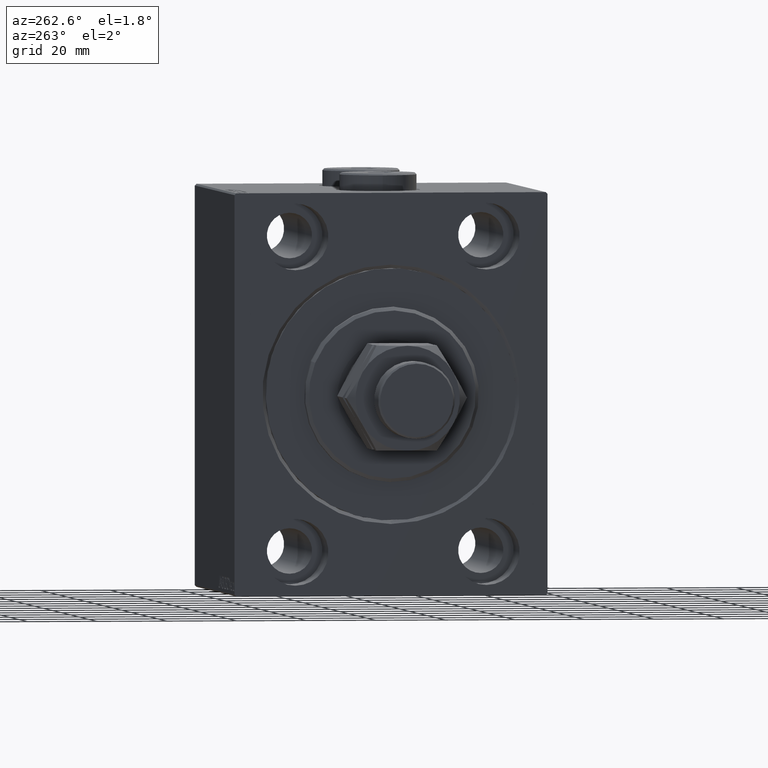
[diagram: clean part render]
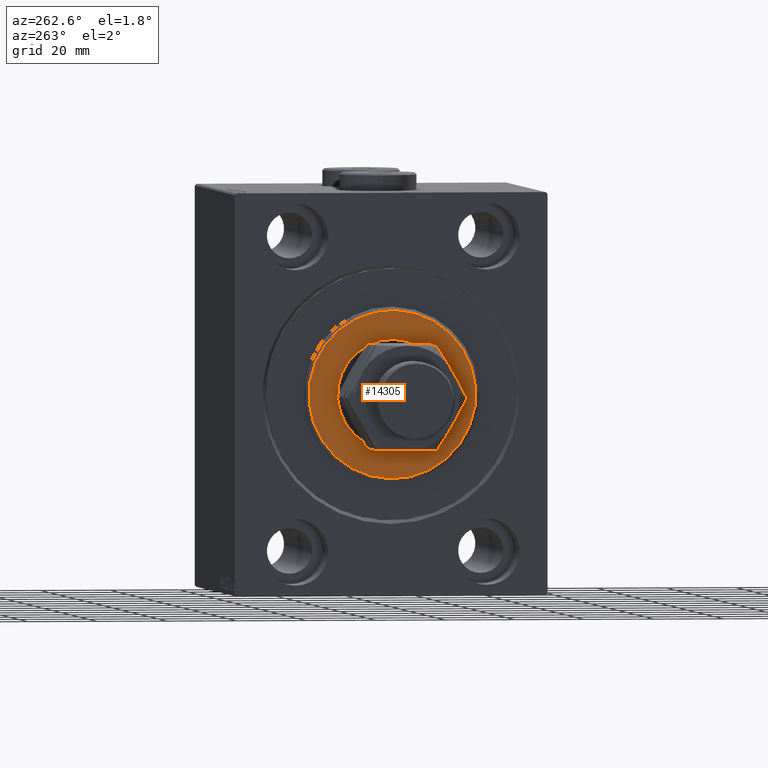
[diagram: same view with one face highlighted and labeled with its STEP entity id]
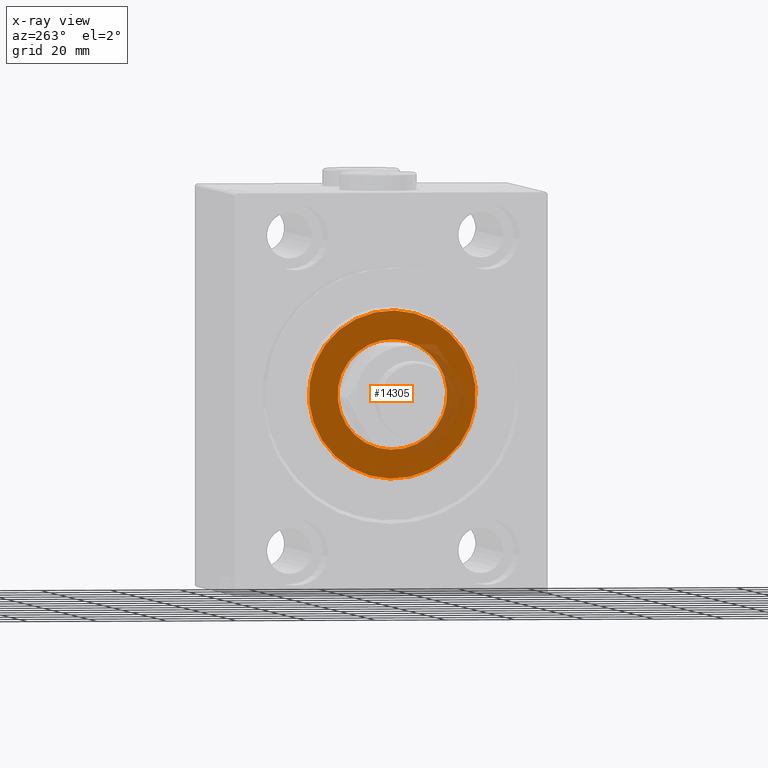
[diagram: x-ray of the same camera — body ghosted, the highlighted face saturated]
A machine part, auxiliary view. The second image highlights one B-rep face of the part: STEP entity #14305.
The next image is the same camera in x-ray: the body ghosted, the highlighted face saturated — about 14% of this face is hidden behind the body in this view.
In plain terms, the highlighted planar face has unit normal (-1, 0, 0).
Its self-contained STEP definition (entity closure, byte-faithful):
#465 = AXIS2_PLACEMENT_3D ( 'NONE', #39763, #36919, #25322 ) ;
#585 = EDGE_LOOP ( 'NONE', ( #39734, #13610 ) ) ;
#2040 = CIRCLE ( 'NONE', #25474, 15.75000000000000000 ) ;
#3863 = AXIS2_PLACEMENT_3D ( 'NONE', #41891, #38108, #41656 ) ;
#4127 = DIRECTION ( 'NONE',  ( -1.000000000000000000, 0.000000000000000000, -0.000000000000000000 ) ) ;
#5953 = EDGE_CURVE ( 'NONE', #18786, #9065, #2040, .T. ) ;
#6416 = FACE_OUTER_BOUND ( 'NONE', #585, .T. ) ;
#6867 = CIRCLE ( 'NONE', #3863, 15.75000000000000000 ) ;
#7936 = CARTESIAN_POINT ( 'NONE',  ( 3.000000000000000000, 0.000000000000000000, 0.000000000000000000 ) ) ;
#9065 = VERTEX_POINT ( 'NONE', #11417 ) ;
#10206 = CARTESIAN_POINT ( 'NONE',  ( 3.000000000000000000, 0.000000000000000000, 24.00000000000003553 ) ) ;
#11417 = CARTESIAN_POINT ( 'NONE',  ( 3.000000000000000000, 0.000000000000000000, 15.75000000000000000 ) ) ;
#13610 = ORIENTED_EDGE ( 'NONE', *, *, #14468, .T. ) ;
#14305 = ADVANCED_FACE ( 'NONE', ( #6416, #31724 ), #21312, .T. ) ;
#14468 = EDGE_CURVE ( 'NONE', #26420, #46093, #15602, .T. ) ;
#15602 = CIRCLE ( 'NONE', #465, 24.00000000000003553 ) ;
#17693 = EDGE_LOOP ( 'NONE', ( #18277, #18757 ) ) ;
#18156 = CIRCLE ( 'NONE', #31710, 24.00000000000003553 ) ;
#18277 = ORIENTED_EDGE ( 'NONE', *, *, #35657, .T. ) ;
#18757 = ORIENTED_EDGE ( 'NONE', *, *, #5953, .T. ) ;
#18786 = VERTEX_POINT ( 'NONE', #40111 ) ;
#21080 = CARTESIAN_POINT ( 'NONE',  ( 3.000000000000000000, 0.000000000000000000, 0.000000000000000000 ) ) ;
#21312 = PLANE ( 'NONE',  #31404 ) ;
#21673 = DIRECTION ( 'NONE',  ( 1.000000000000000000, -0.000000000000000000, 0.000000000000000000 ) ) ;
#22366 = DIRECTION ( 'NONE',  ( 0.000000000000000000, 0.000000000000000000, -1.000000000000000000 ) ) ;
#25322 = DIRECTION ( 'NONE',  ( 0.000000000000000000, 0.000000000000000000, -1.000000000000000000 ) ) ;
#25474 = AXIS2_PLACEMENT_3D ( 'NONE', #35823, #4127, #42935 ) ;
#26420 = VERTEX_POINT ( 'NONE', #42559 ) ;
#31404 = AXIS2_PLACEMENT_3D ( 'NONE', #21080, #35976, #46163 ) ;
#31710 = AXIS2_PLACEMENT_3D ( 'NONE', #7936, #21673, #22366 ) ;
#31724 = FACE_BOUND ( 'NONE', #17693, .T. ) ;
#32869 = EDGE_CURVE ( 'NONE', #46093, #26420, #18156, .T. ) ;
#35657 = EDGE_CURVE ( 'NONE', #9065, #18786, #6867, .T. ) ;
#35823 = CARTESIAN_POINT ( 'NONE',  ( 3.000000000000000000, 0.000000000000000000, 0.000000000000000000 ) ) ;
#35976 = DIRECTION ( 'NONE',  ( 1.000000000000000000, -0.000000000000000000, 0.000000000000000000 ) ) ;
#36919 = DIRECTION ( 'NONE',  ( 1.000000000000000000, -0.000000000000000000, 0.000000000000000000 ) ) ;
#38108 = DIRECTION ( 'NONE',  ( -1.000000000000000000, 0.000000000000000000, -0.000000000000000000 ) ) ;
#39734 = ORIENTED_EDGE ( 'NONE', *, *, #32869, .T. ) ;
#39763 = CARTESIAN_POINT ( 'NONE',  ( 3.000000000000000000, 0.000000000000000000, 0.000000000000000000 ) ) ;
#40111 = CARTESIAN_POINT ( 'NONE',  ( 3.000000000000000000, 1.928818708657080950E-15, -15.75000000000000000 ) ) ;
#41656 = DIRECTION ( 'NONE',  ( 0.000000000000000000, 0.000000000000000000, -1.000000000000000000 ) ) ;
#41891 = CARTESIAN_POINT ( 'NONE',  ( 3.000000000000000000, 0.000000000000000000, 0.000000000000000000 ) ) ;
#42559 = CARTESIAN_POINT ( 'NONE',  ( 3.000000000000000000, 3.000384657911017441E-15, -24.00000000000003553 ) ) ;
#42935 = DIRECTION ( 'NONE',  ( 0.000000000000000000, 0.000000000000000000, -1.000000000000000000 ) ) ;
#46093 = VERTEX_POINT ( 'NONE', #10206 ) ;
#46163 = DIRECTION ( 'NONE',  ( 0.000000000000000000, 0.000000000000000000, -1.000000000000000000 ) ) ;